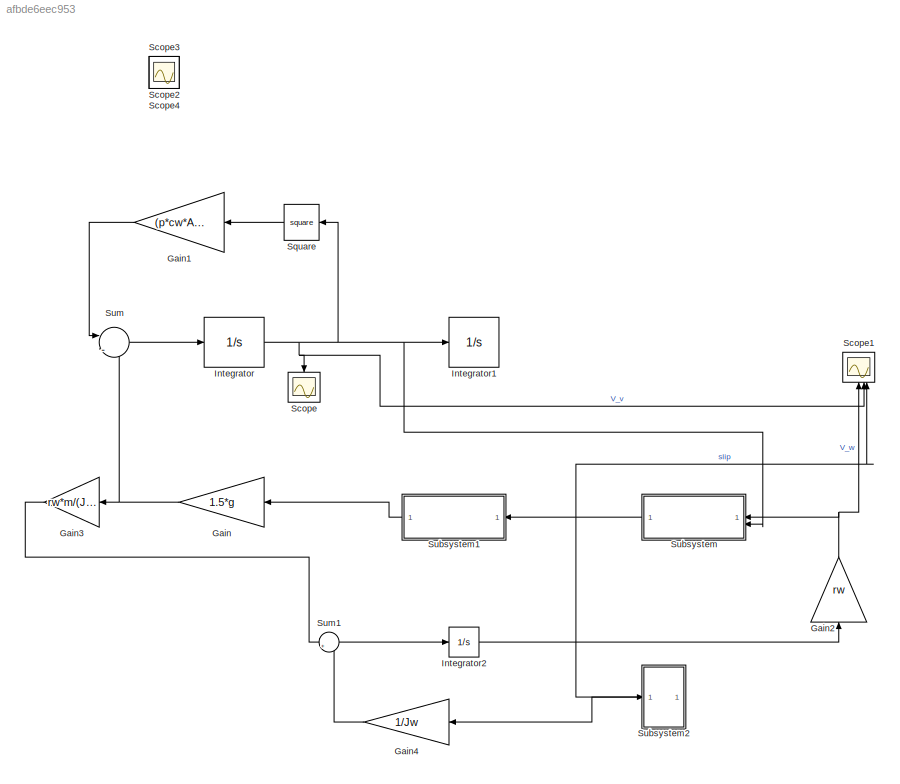
MODEL slx_afbde6eec953
KIND model
CONFIG AbsTol = auto
CONFIG EnableMultiTasking = off
CONFIG FixedStep = auto
CONFIG MaxStep = auto
CONFIG MinStep = auto
CONFIG RelTol = 1e-3
CONFIG SampleTimeConstraint = Unconstrained
CONFIG SolverName = VariableStepAuto
CONFIG StartTime = 0.0
CONFIG StopTime = 3
BLOCK [Gain] Gain
  Gain = 1.5*g
  NameLocation = top
BLOCK [Gain] Gain1
  Gain = (p*cw*A)/(2*m)
  NameLocation = top
BLOCK [Gain] Gain2
  Gain = rw
  NameLocation = right
BLOCK [Gain] Gain3
  Gain = rw*m/(Jw)
  NameLocation = top
BLOCK [Gain] Gain4
  Gain = 1/Jw
BLOCK [Integrator] Integrator
  InitialCondition = v0
  LimitOutput = on
  LowerSaturationLimit = 0
  ZeroCross = off
BLOCK [Integrator] Integrator1
  LimitOutput = on
  LowerSaturationLimit = 0
  ZeroCross = off
BLOCK [Integrator] Integrator2
  InitialCondition = v0/rw
  LimitOutput = on
  LowerSaturationLimit = 0
  ZeroCross = off
BLOCK [Scope] Scope
  Floating = off
  NameLocation = left
  NumInputPorts = 1
  ScopeSpecificationString = Simulink.scopes.TimeScopeBlockCfg('CurrentConfiguration', extmgr.ConfigurationSet(extmgr.Configuration('Core','General UI',true),extmgr.Configuration('Core','Source UI',true),extmgr.Configuration('Sources','WiredSimulink',true),extmgr.Configuration('Visuals','Time Domain',true,'SerializedDisplays',{struct('MinYLimReal','23.29272','MaxYLimReal','28.27612','YLabelReal','','MinYLimMag','23.29272','Ma...<+1358ch>
BLOCK [Scope] Scope1
  Floating = off
  NameLocation = right
  NumInputPorts = 3
  ScopeSpecificationString = Simulink.scopes.TimeScopeBlockCfg('CurrentConfiguration', extmgr.ConfigurationSet(extmgr.Configuration('Core','General UI',true),extmgr.Configuration('Core','Source UI',true),extmgr.Configuration('Sources','WiredSimulink',true,'DataLoggingVariableName','ScopeData1'),extmgr.Configuration('Visuals','Time Domain',true,'SerializedDisplays',{struct('MinYLimReal','-3.47222','MaxYLimReal','31.25','YLabel...<+1753ch>
BLOCK [Scope] Scope2
  Floating = off
  IOType = viewer
  NumInputPorts = 1
  ScopeSpecificationString = Simulink.scopes.TimeScopeBlockCfg('CurrentConfiguration', extmgr.ConfigurationSet(extmgr.Configuration('Core','General UI',true),extmgr.Configuration('Core','Source UI',true),extmgr.Configuration('Sources','WiredSimulink',true,'DataLoggingVariableName','ScopeData2'),extmgr.Configuration('Visuals','Time Domain',true,'SerializedDisplays',{struct('MinYLimReal','-11.57407','MaxYLimReal','104.16667','Y...<+1486ch>
BLOCK [Scope] Scope3
  Floating = off
  IOType = viewer
  NumInputPorts = 1
  ScopeSpecificationString = Simulink.scopes.TimeScopeBlockCfg('CurrentConfiguration', extmgr.ConfigurationSet(extmgr.Configuration('Core','General UI',true),extmgr.Configuration('Core','Source UI',true),extmgr.Configuration('Sources','WiredSimulink',true,'DataLoggingVariableName','ScopeData3'),extmgr.Configuration('Visuals','Time Domain',true,'SerializedDisplays',{struct('MinYLimReal','-13.02332','MaxYLimReal','1.24127','YLa...<+1394ch>
BLOCK [Scope] Scope4
  Floating = off
  IOType = viewer
  NumInputPorts = 1
  ScopeSpecificationString = Simulink.scopes.TimeScopeBlockCfg('CurrentConfiguration', extmgr.ConfigurationSet(extmgr.Configuration('Core','General UI',true),extmgr.Configuration('Core','Source UI',true),extmgr.Configuration('Sources','WiredSimulink',true,'DataLoggingVariableName','ScopeData4'),extmgr.Configuration('Visuals','Time Domain',true,'SerializedDisplays',{struct('MinYLimReal','-0.22485','MaxYLimReal','1.13609','YLab...<+1396ch>
BLOCK [Math] Square
  NameLocation = top
  Operator = square
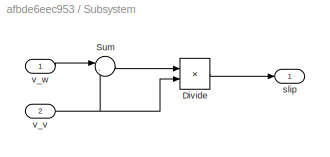
BLOCK [SubSystem] Subsystem
  NameLocation = top
BLOCK [Product] Subsystem/Divide
  Inputs = */
BLOCK [Sum] Subsystem/Sum
  Inputs = |-+
BLOCK [Outport] Subsystem/slip
BLOCK [Inport] Subsystem/v_v
  Port = 2
BLOCK [Inport] Subsystem/v_w
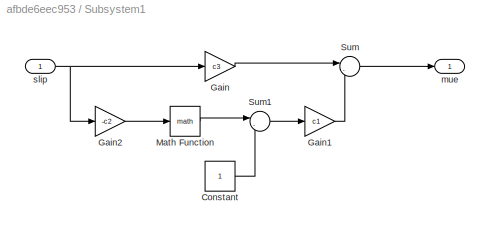
BLOCK [SubSystem] Subsystem1
  NameLocation = top
BLOCK [Constant] Subsystem1/Constant
BLOCK [Gain] Subsystem1/Gain
  Gain = c3
BLOCK [Gain] Subsystem1/Gain1
  Gain = c1
BLOCK [Gain] Subsystem1/Gain2
  Gain = -c2
BLOCK [Math] Subsystem1/Math Function
BLOCK [Sum] Subsystem1/Sum
  Inputs = |-+
BLOCK [Sum] Subsystem1/Sum1
  Inputs = |-+
BLOCK [Outport] Subsystem1/mue
BLOCK [Inport] Subsystem1/slip
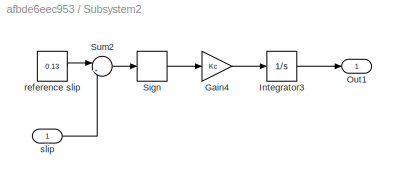
BLOCK [SubSystem] Subsystem2
  PortSchema = {"entries":[{"content":{"sides":[{"content":{"connectorIds":["In1","Out1"]},"type":"ConnectorPlacement.EquallySpacedRectSide","uuid":"c8d10a41-c703-4ae3-9a55-6ad75991b8ec"},{"content":{"side":"RIGHT"},"type":"ConnectorPlacement.EquallySpacedRectSide","uuid":"4f23f97a-b193-456e-912a-a2274241b3c8"},{"content":{"side":"TOP"},"type":"ConnectorPlacement.EquallySpacedRectSide","uuid":"2ae19fe0-d5d7-40d7...<+205ch>
BLOCK [Gain] Subsystem2/Gain4
  Gain = Kc
BLOCK [Integrator] Subsystem2/Integrator3
  LimitOutput = on
  LowerSaturationLimit = 0
  ZeroCross = off
BLOCK [Outport] Subsystem2/Out1
BLOCK [Signum] Subsystem2/Sign
BLOCK [Sum] Subsystem2/Sum2
  Inputs = |+-
BLOCK [Constant] Subsystem2/reference slip
  Value = 0.13
BLOCK [Inport] Subsystem2/slip
BLOCK [Sum] Sum
  Inputs = |--
BLOCK [Sum] Sum1
  Inputs = |+-
LINE Gain1:1 -> Sum:1
NET Gain2:1 -> Scope1:1, Subsystem:1
LINE Gain3:1 -> Sum1:1
LINE Gain4:1 -> Sum1:2
NET Gain:1 -> Gain3:1, Sum:2
LINE Integrator2:1 -> Gain2:1
NET Integrator:1 -> Integrator1:1, Scope1:2, Scope:1, Square:1, Subsystem:2
LINE Square:1 -> Gain1:1
LINE Subsystem/Divide:1 -> Subsystem/slip:1
LINE Subsystem/Sum:1 -> Subsystem/Divide:1
NET Subsystem/v_v:1 -> Subsystem/Divide:2, Subsystem/Sum:2
LINE Subsystem/v_w:1 -> Subsystem/Sum:1
LINE Subsystem1/Constant:1 -> Subsystem1/Sum1:2
LINE Subsystem1/Gain1:1 -> Subsystem1/Sum:2
LINE Subsystem1/Gain2:1 -> Subsystem1/Math Function:1
LINE Subsystem1/Gain:1 -> Subsystem1/Sum:1
LINE Subsystem1/Math Function:1 -> Subsystem1/Sum1:1
LINE Subsystem1/Sum1:1 -> Subsystem1/Gain1:1
LINE Subsystem1/Sum:1 -> Subsystem1/mue:1
NET Subsystem1/slip:1 -> Subsystem1/Gain2:1, Subsystem1/Gain:1
LINE Subsystem1:1 -> Gain:1
LINE Subsystem2/Gain4:1 -> Subsystem2/Integrator3:1
LINE Subsystem2/Integrator3:1 -> Subsystem2/Out1:1
LINE Subsystem2/Sign:1 -> Subsystem2/Gain4:1
LINE Subsystem2/Sum2:1 -> Subsystem2/Sign:1
LINE Subsystem2/reference slip:1 -> Subsystem2/Sum2:1
LINE Subsystem2/slip:1 -> Subsystem2/Sum2:2
LINE Subsystem2:1 -> Gain4:1
NET Subsystem:1 -> Scope1:3, Subsystem1:1, Subsystem2:1
LINE Sum1:1 -> Integrator2:1
LINE Sum:1 -> Integrator:1
note: NET lines group one-source signal fan-out (src -> all destinations, sorted); 1:1 wires keep LINE
